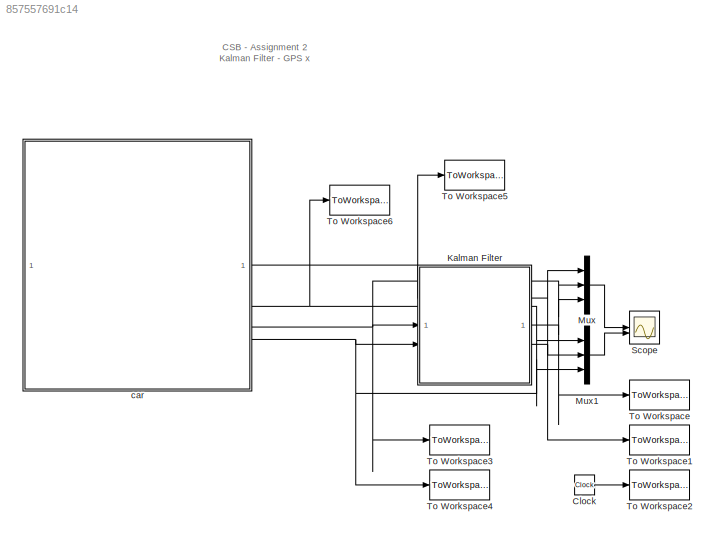
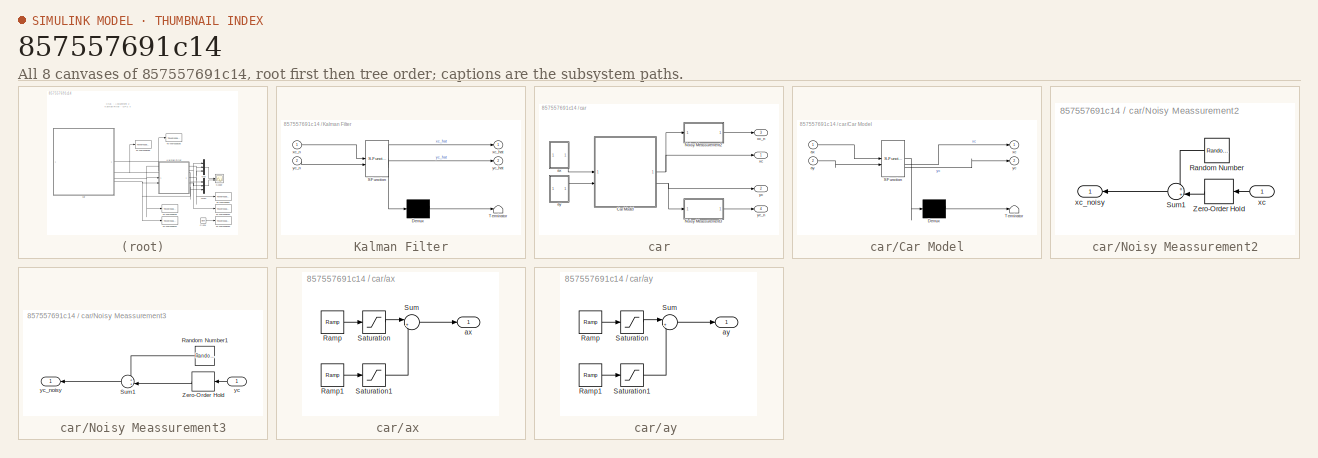
[diagram: thumbnail index - all 8 canvases of the model, root first then tree order]
MODEL slx_857557691c14
KIND model
CONFIG AbsTol = auto
CONFIG EnableMultiTasking = off
CONFIG FixedStep = auto
CONFIG MaxStep = auto
CONFIG MinStep = auto
CONFIG RelTol = 1e-3
CONFIG SampleTimeConstraint = Unconstrained
CONFIG SolverName = VariableStepAuto
CONFIG StartTime = 0.0
CONFIG StopTime = 200
BLOCK [Clock] Clock
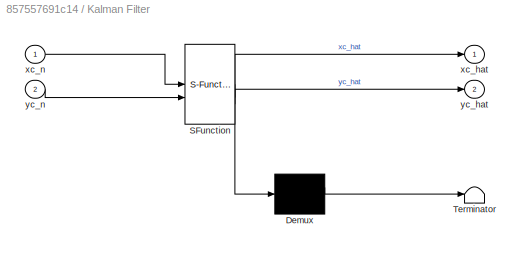
BLOCK [SubSystem] Kalman Filter
  ErrorFcn = Stateflow.Translate.translate
  PermitHierarchicalResolution = ExplicitOnly
  SFBlockType = MATLAB Function
  SystemSampleTime = Ts
  TreatAsAtomicUnit = on
BLOCK [Demux] Kalman Filter/ Demux 
  Outputs = 1
BLOCK [S-Function] Kalman Filter/ SFunction 
  EnableBusSupport = on
  FunctionName = sf_sfun
  Parameters = A,C,Kf,xo_hat
  PortCounts = [2 3]
  SFcnIsStateOwnerBlock = off
  SFunctionDeploymentMode = off
  Tag = Stateflow S-Function 2
BLOCK [Terminator] Kalman Filter/ Terminator 
BLOCK [Outport] Kalman Filter/xc_hat
  VectorParamsAs1DForOutWhenUnconnected = off
BLOCK [Inport] Kalman Filter/xc_n
BLOCK [Outport] Kalman Filter/yc_hat
  Port = 2
  VectorParamsAs1DForOutWhenUnconnected = off
BLOCK [Inport] Kalman Filter/yc_n
  Port = 2
BLOCK [Mux] Mux
  DisplayOption = bar
  Inputs = 3
BLOCK [Mux] Mux1
  DisplayOption = bar
  Inputs = 3
BLOCK [Scope] Scope
  Floating = off
  NumInputPorts = 2
  ScopeSpecificationString = Simulink.scopes.TimeScopeBlockCfg('CurrentConfiguration', extmgr.ConfigurationSet(extmgr.Configuration('Core','General UI',true),extmgr.Configuration('Core','Source UI',true),extmgr.Configuration('Sources','WiredSimulink',true,'DataLoggingVariableName','ScopeData1'),extmgr.Configuration('Visuals','Time Domain',true,'SerializedDisplays',{struct('MinYLimReal','-16.199','MaxYLimReal','62.59603','YLab...<+2188ch>
BLOCK [ToWorkspace] To Workspace
  FixptAsFi = on
  MaxDataPoints = inf
  SampleTime = Ts
  VariableName = xc_hat
BLOCK [ToWorkspace] To Workspace1
  FixptAsFi = on
  MaxDataPoints = inf
  SampleTime = Ts
  VariableName = yc_hat
BLOCK [ToWorkspace] To Workspace2
  FixptAsFi = on
  MaxDataPoints = inf
  SampleTime = Ts
  VariableName = time
BLOCK [ToWorkspace] To Workspace3
  FixptAsFi = on
  MaxDataPoints = inf
  SampleTime = Ts
  VariableName = xc_n
BLOCK [ToWorkspace] To Workspace4
  FixptAsFi = on
  MaxDataPoints = inf
  SampleTime = Ts
  VariableName = yc_n
BLOCK [ToWorkspace] To Workspace5
  FixptAsFi = on
  MaxDataPoints = inf
  SampleTime = Ts
  VariableName = xc
BLOCK [ToWorkspace] To Workspace6
  FixptAsFi = on
  MaxDataPoints = inf
  SampleTime = Ts
  VariableName = yc
BLOCK [SubSystem] car
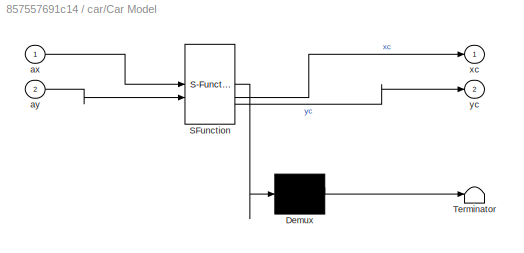
BLOCK [SubSystem] car/Car Model
  ErrorFcn = Stateflow.Translate.translate
  LibrarySourceBlock = simulink/User-Defined\nFunctions/MATLAB Function
  PermitHierarchicalResolution = ExplicitOnly
  SFBlockType = MATLAB Function
  SystemSampleTime = 0.1
  TreatAsAtomicUnit = on
BLOCK [Demux] car/Car Model/ Demux 
  Outputs = 1
BLOCK [S-Function] car/Car Model/ SFunction 
  EnableBusSupport = on
  FunctionName = sf_sfun
  PortCounts = [2 3]
  SFcnIsStateOwnerBlock = off
  SFunctionDeploymentMode = off
  Tag = Stateflow S-Function 1
BLOCK [Terminator] car/Car Model/ Terminator 
BLOCK [Inport] car/Car Model/ax
BLOCK [Inport] car/Car Model/ay
  Port = 2
BLOCK [Outport] car/Car Model/xc
BLOCK [Outport] car/Car Model/yc
  Port = 2
BLOCK [SubSystem] car/Noisy Meassurement2
BLOCK [RandomNumber] car/Noisy Meassurement2/Random Number
  NameLocation = top
  SampleTime = Ts
  Seed = 1
  Variance = 7
BLOCK [Sum] car/Noisy Meassurement2/Sum1
  Inputs = ++|
  NameLocation = top
BLOCK [ZeroOrderHold] car/Noisy Meassurement2/Zero-Order Hold
  NameLocation = top
  SampleTime = 1/fgps
BLOCK [Inport] car/Noisy Meassurement2/xc
  NameLocation = top
BLOCK [Outport] car/Noisy Meassurement2/xc_noisy
  VectorParamsAs1DForOutWhenUnconnected = off
BLOCK [SubSystem] car/Noisy Meassurement3
BLOCK [RandomNumber] car/Noisy Meassurement3/Random Number1
  NameLocation = top
  SampleTime = Ts
  Seed = -1
  Variance = 11
BLOCK [Sum] car/Noisy Meassurement3/Sum1
  Inputs = ++|
  NameLocation = top
BLOCK [ZeroOrderHold] car/Noisy Meassurement3/Zero-Order Hold
  NameLocation = top
  SampleTime = 1/fgps
BLOCK [Inport] car/Noisy Meassurement3/yc
  NameLocation = top
BLOCK [Outport] car/Noisy Meassurement3/yc_noisy
  VectorParamsAs1DForOutWhenUnconnected = off
BLOCK [SubSystem] car/ax 
BLOCK [Reference] car/ax /Ramp  REF=simulink/Sources/Ramp
  SourceBlock = simulink/Sources/Ramp
  SourceType = Ramp
BLOCK [Reference] car/ax /Ramp1  REF=simulink/Sources/Ramp
  SourceBlock = simulink/Sources/Ramp
  SourceType = Ramp
BLOCK [Saturate] car/ax /Saturation
  LowerLimit = 0
  UpperLimit = 100
BLOCK [Saturate] car/ax /Saturation1
  LowerLimit = -90
  UpperLimit = 1
BLOCK [Sum] car/ax /Sum
  Inputs = |++
BLOCK [Outport] car/ax /ax
  VectorParamsAs1DForOutWhenUnconnected = off
BLOCK [SubSystem] car/ay 
BLOCK [Reference] car/ay /Ramp  REF=simulink/Sources/Ramp
  SourceBlock = simulink/Sources/Ramp
  SourceType = Ramp
BLOCK [Reference] car/ay /Ramp1  REF=simulink/Sources/Ramp
  SourceBlock = simulink/Sources/Ramp
  SourceType = Ramp
BLOCK [Saturate] car/ay /Saturation
  LowerLimit = 0
  UpperLimit = 400
BLOCK [Saturate] car/ay /Saturation1
  LowerLimit = -400
  UpperLimit = 0
BLOCK [Sum] car/ay /Sum
  Inputs = |++
BLOCK [Outport] car/ay /ay
  VectorParamsAs1DForOutWhenUnconnected = off
BLOCK [Outport] car/xc
  VectorParamsAs1DForOutWhenUnconnected = off
BLOCK [Outport] car/xc_n
  Port = 3
  VectorParamsAs1DForOutWhenUnconnected = off
BLOCK [Outport] car/yc
  Port = 2
  VectorParamsAs1DForOutWhenUnconnected = off
BLOCK [Outport] car/yc_n
  Port = 4
  VectorParamsAs1DForOutWhenUnconnected = off
ANNOTATION (root): CSB - Assignment 2 Kalman Filter - GPS x
LINE Clock:1 -> To Workspace2:1
NET Kalman Filter:1 -> Mux:3, To Workspace:1
NET Kalman Filter:2 -> Mux1:2, To Workspace1:1
LINE Mux1:1 -> Scope:2
LINE Mux:1 -> Scope:1
NET car/Car Model:1 -> car/Noisy Meassurement2:1, car/xc:1
NET car/Car Model:2 -> car/Noisy Meassurement3:1, car/yc:1
LINE car/Noisy Meassurement2/Random Number:1 -> car/Noisy Meassurement2/Sum1:1
LINE car/Noisy Meassurement2/Sum1:1 -> car/Noisy Meassurement2/xc_noisy:1
LINE car/Noisy Meassurement2/Zero-Order Hold:1 -> car/Noisy Meassurement2/Sum1:2
LINE car/Noisy Meassurement2/xc:1 -> car/Noisy Meassurement2/Zero-Order Hold:1
LINE car/Noisy Meassurement2:1 -> car/xc_n:1
LINE car/Noisy Meassurement3/Random Number1:1 -> car/Noisy Meassurement3/Sum1:1
LINE car/Noisy Meassurement3/Sum1:1 -> car/Noisy Meassurement3/yc_noisy:1
LINE car/Noisy Meassurement3/Zero-Order Hold:1 -> car/Noisy Meassurement3/Sum1:2
LINE car/Noisy Meassurement3/yc:1 -> car/Noisy Meassurement3/Zero-Order Hold:1
LINE car/Noisy Meassurement3:1 -> car/yc_n:1
LINE car/ax /Ramp1:1 -> car/ax /Saturation1:1
LINE car/ax /Ramp:1 -> car/ax /Saturation:1
LINE car/ax /Saturation1:1 -> car/ax /Sum:2
LINE car/ax /Saturation:1 -> car/ax /Sum:1
LINE car/ax /Sum:1 -> car/ax /ax:1
LINE car/ax :1 -> car/Car Model:1
LINE car/ay /Ramp1:1 -> car/ay /Saturation1:1
LINE car/ay /Ramp:1 -> car/ay /Saturation:1
LINE car/ay /Saturation1:1 -> car/ay /Sum:2
LINE car/ay /Saturation:1 -> car/ay /Sum:1
LINE car/ay /Sum:1 -> car/ay /ay:1
LINE car/ay :1 -> car/Car Model:2
NET car:1 -> Mux:1, To Workspace5:1
NET car:2 -> Mux1:1, To Workspace6:1
NET car:3 -> Kalman Filter:1, Mux:2, To Workspace3:1
NET car:4 -> Kalman Filter:2, Mux1:3, To Workspace4:1
note: NET lines group one-source signal fan-out (src -> all destinations, sorted); 1:1 wires keep LINE
CHART car/Car Model states=1 transitions=1
  STATE_LABEL 'eML_blk_kernel()'
  STATE_LABEL 'SCRIPT:\nfunction [xc, yc] = fnc(ax, ay)\n    [xc,yc] = car_xy_model(ax,ay);\nend\n\n'
CHART Kalman Filter states=1 transitions=1
  STATE_LABEL 'eML_blk_kernel()'
  STATE_LABEL 'SCRIPT:\nfunction [xc_hat,yc_hat] = Filter(xc_n, yc_n, A, C, Kf,xo_hat)\n\n%% Use persistent for variables that require memory\npersistent x_hat_k      % Present state estimate \n    if isempty(x_hat_k) \n        x_hat_k = xo_hat;  % State estimate initialization\n    end\n\npersistent x_hat_k1         % Next-step state estimate\n    if isempty(x_hat_k1)\n        x_hat_k1 = xo_hat; % State estimate initializ...<+336ch>'
CHART  states=0 transitions=0
CHART  states=0 transitions=0
